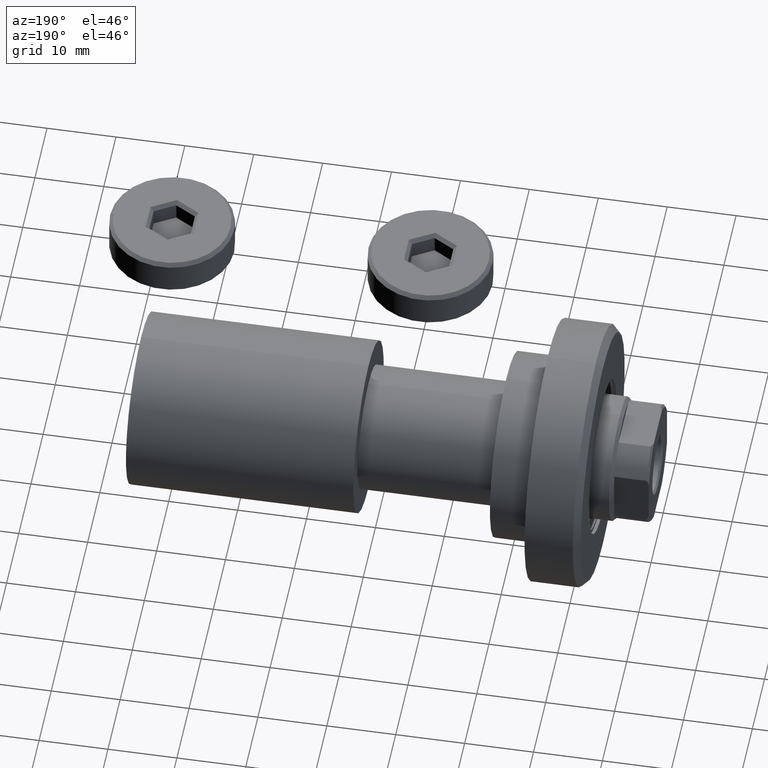
[diagram: clean part render]
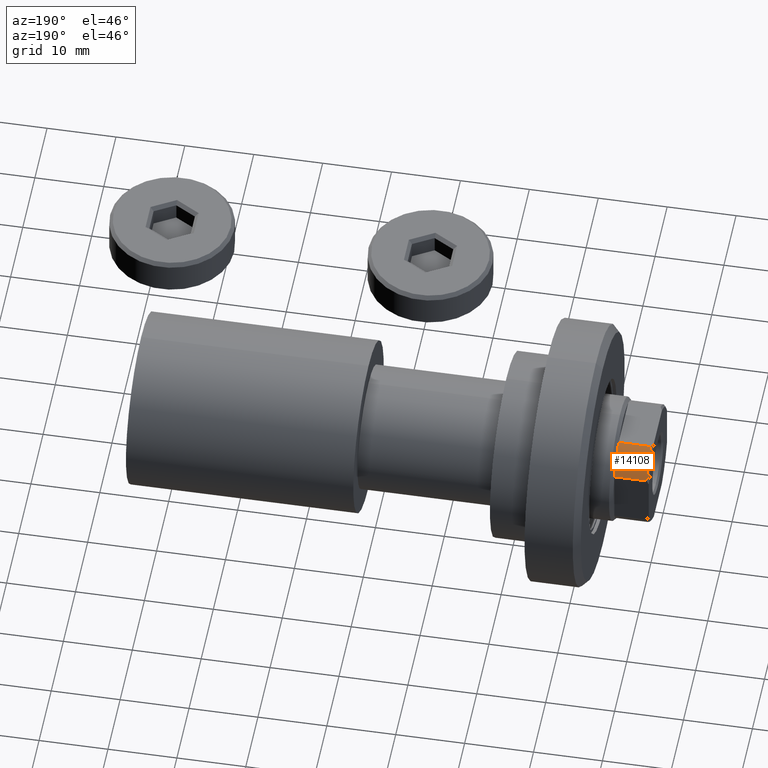
[diagram: same view with one face highlighted and labeled with its STEP entity id]
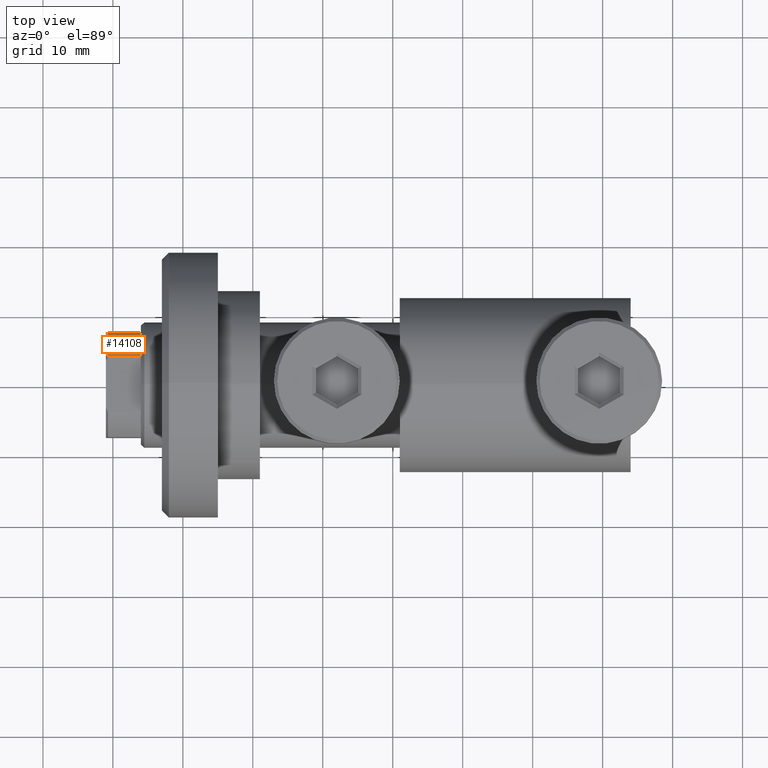
[diagram: same view with one face highlighted and labeled with its STEP entity id]
A machine part, auxiliary view. The second image highlights one B-rep face of the part: STEP entity #14108.
A second angle (top view) of the same face is appended — the face is thin or edge-on in the first view.
In plain terms, the highlighted cylindrical surface (partial cylindrical patch) has radius 8.5 mm, axis along (-1, 0, 0).
Its self-contained STEP definition (entity closure, byte-faithful):
#1323 = ORIENTED_EDGE ( 'NONE', *, *, #1551, .F. ) ;
#1551 = EDGE_CURVE ( 'NONE', #19662, #6546, #45134, .T. ) ;
#1942 = CARTESIAN_POINT ( 'NONE',  ( 7.499999999999997335, 4.000000000000007105, 74.70000000000001705 ) ) ;
#2104 = CARTESIAN_POINT ( 'NONE',  ( 0.000000000000000000, 0.000000000000000000, 74.70000000000001705 ) ) ;
#2945 = CARTESIAN_POINT ( 'NONE',  ( 7.499999999999997335, 4.000000000000007105, -0.001000000000001000089 ) ) ;
#4053 = ORIENTED_EDGE ( 'NONE', *, *, #29770, .T. ) ;
#5995 = LINE ( 'NONE', #10144, #24634 ) ;
#6333 = VERTEX_POINT ( 'NONE', #21387 ) ;
#6546 = VERTEX_POINT ( 'NONE', #1942 ) ;
#9662 = DIRECTION ( 'NONE',  ( 0.000000000000000000, 0.000000000000000000, 1.000000000000000000 ) ) ;
#10144 = CARTESIAN_POINT ( 'NONE',  ( 4.000000000000000000, 7.500000000000000888, -0.001000000000001000089 ) ) ;
#12628 = AXIS2_PLACEMENT_3D ( 'NONE', #2104, #40156, #22398 ) ;
#13154 = DIRECTION ( 'NONE',  ( -0.000000000000000000, -0.000000000000000000, 1.000000000000000000 ) ) ;
#14108 = ADVANCED_FACE ( 'NONE', ( #25564 ), #21872, .T. ) ;
#14152 = EDGE_LOOP ( 'NONE', ( #32989, #4053, #1323, #30671 ) ) ;
#14949 = DIRECTION ( 'NONE',  ( -0.000000000000000000, -0.000000000000000000, 1.000000000000000000 ) ) ;
#16119 = CARTESIAN_POINT ( 'NONE',  ( 0.000000000000000000, 0.000000000000000000, 70.00000000000000000 ) ) ;
#18040 = CARTESIAN_POINT ( 'NONE',  ( 4.000000000000000000, 7.500000000000000888, 74.70000000000001705 ) ) ;
#19662 = VERTEX_POINT ( 'NONE', #22974 ) ;
#21387 = CARTESIAN_POINT ( 'NONE',  ( 4.000000000000000000, 7.500000000000000888, 70.00000000000001421 ) ) ;
#21872 = CYLINDRICAL_SURFACE ( 'NONE', #29841, 8.500000000000000000 ) ;
#22398 = DIRECTION ( 'NONE',  ( 1.000000000000000000, 3.552713678800500929E-15, 0.000000000000000000 ) ) ;
#22974 = CARTESIAN_POINT ( 'NONE',  ( 7.499999999999997335, 4.000000000000007105, 70.00000000000001421 ) ) ;
#24410 = CIRCLE ( 'NONE', #12628, 8.500000000000000000 ) ;
#24634 = VECTOR ( 'NONE', #13154, 1000.000000000000000 ) ;
#25564 = FACE_OUTER_BOUND ( 'NONE', #14152, .T. ) ;
#29770 = EDGE_CURVE ( 'NONE', #31627, #6546, #24410, .T. ) ;
#29841 = AXIS2_PLACEMENT_3D ( 'NONE', #32032, #14949, #42856 ) ;
#30671 = ORIENTED_EDGE ( 'NONE', *, *, #32035, .T. ) ;
#31627 = VERTEX_POINT ( 'NONE', #18040 ) ;
#32032 = CARTESIAN_POINT ( 'NONE',  ( 0.000000000000000000, 0.000000000000000000, -0.001000000000001000089 ) ) ;
#32035 = EDGE_CURVE ( 'NONE', #19662, #6333, #33946, .T. ) ;
#32460 = AXIS2_PLACEMENT_3D ( 'NONE', #16119, #9662, #44243 ) ;
#32989 = ORIENTED_EDGE ( 'NONE', *, *, #41443, .T. ) ;
#33946 = CIRCLE ( 'NONE', #32460, 8.500000000000007105 ) ;
#36996 = VECTOR ( 'NONE', #37995, 1000.000000000000000 ) ;
#37995 = DIRECTION ( 'NONE',  ( -0.000000000000000000, -0.000000000000000000, 1.000000000000000000 ) ) ;
#40156 = DIRECTION ( 'NONE',  ( -0.000000000000000000, -0.000000000000000000, -1.000000000000000000 ) ) ;
#41443 = EDGE_CURVE ( 'NONE', #6333, #31627, #5995, .T. ) ;
#42856 = DIRECTION ( 'NONE',  ( 1.000000000000000000, 0.000000000000000000, 0.000000000000000000 ) ) ;
#44243 = DIRECTION ( 'NONE',  ( 1.000000000000000000, 0.000000000000000000, 0.000000000000000000 ) ) ;
#45134 = LINE ( 'NONE', #2945, #36996 ) ;